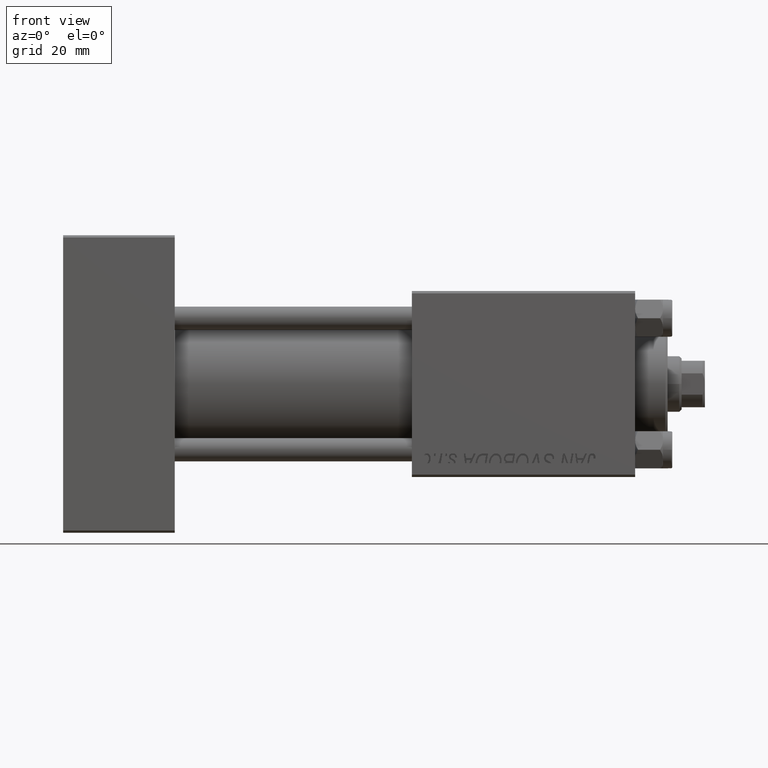
[diagram: clean part render]
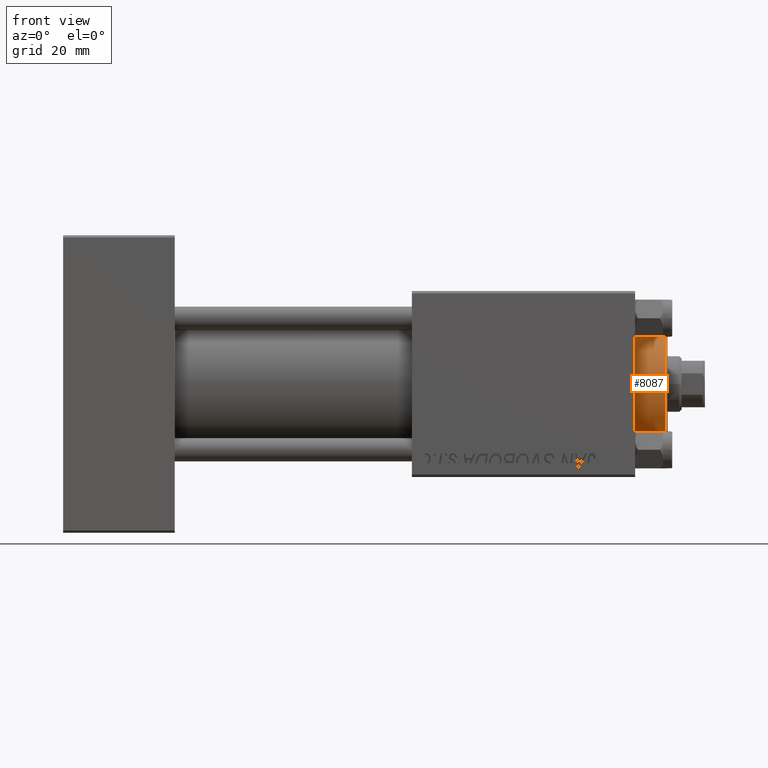
[diagram: same view with one face highlighted and labeled with its STEP entity id]
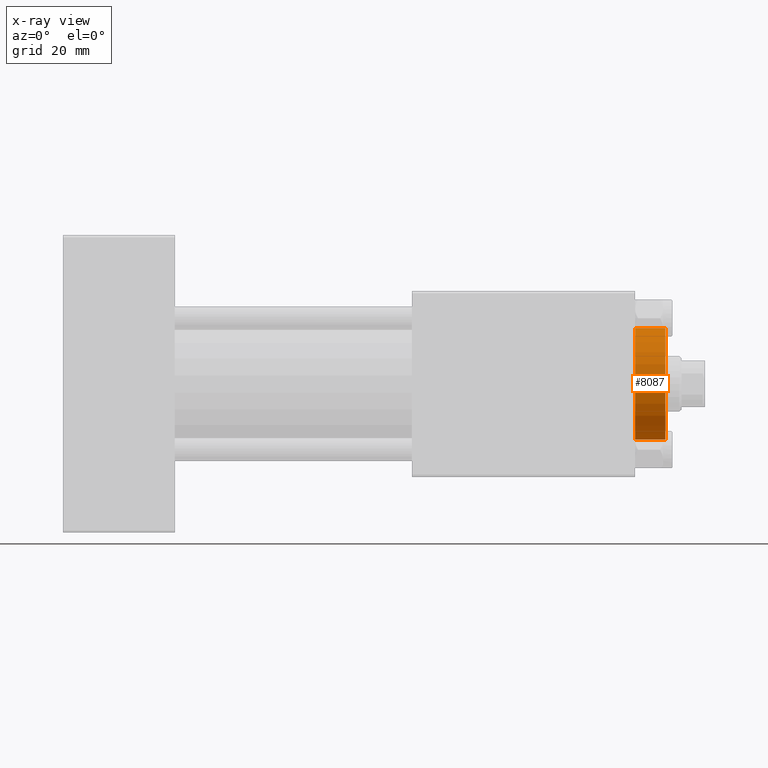
[diagram: x-ray of the same camera — body ghosted, the highlighted face saturated]
A machine part, front view. The second image highlights one B-rep face of the part: STEP entity #8087.
The next image is the same camera in x-ray: the body ghosted, the highlighted face saturated — about 0% of this face is hidden behind the body in this view.
In plain terms, the highlighted cylindrical surface (partial cylindrical patch) has radius 12 mm, axis along (-1, -0, 0).
Its self-contained STEP definition (entity closure, byte-faithful):
#204 = DIRECTION ( 'NONE',  ( -0.000000000000000000, -0.000000000000000000, -1.000000000000000000 ) ) ;
#399 = CARTESIAN_POINT ( 'NONE',  ( 0.000000000000000000, 0.000000000000000000, 35.19999999999999574 ) ) ;
#699 = AXIS2_PLACEMENT_3D ( 'NONE', #27107, #7915, #45797 ) ;
#3124 = DIRECTION ( 'NONE',  ( -0.000000000000000000, -0.000000000000000000, -1.000000000000000000 ) ) ;
#4938 = ORIENTED_EDGE ( 'NONE', *, *, #32962, .T. ) ;
#7486 = EDGE_CURVE ( 'NONE', #47022, #32833, #12799, .T. ) ;
#7915 = DIRECTION ( 'NONE',  ( 0.000000000000000000, 0.000000000000000000, 1.000000000000000000 ) ) ;
#8087 = ADVANCED_FACE ( 'NONE', ( #35566 ), #42876, .T. ) ;
#10953 = CARTESIAN_POINT ( 'NONE',  ( -12.00000000000000178, 0.000000000000000000, 35.70000000000000284 ) ) ;
#11571 = LINE ( 'NONE', #26718, #38207 ) ;
#12023 = ORIENTED_EDGE ( 'NONE', *, *, #24948, .F. ) ;
#12799 = CIRCLE ( 'NONE', #699, 12.00000000000000178 ) ;
#12854 = DIRECTION ( 'NONE',  ( -0.000000000000000000, -0.000000000000000000, -1.000000000000000000 ) ) ;
#13537 = VERTEX_POINT ( 'NONE', #43755 ) ;
#18182 = EDGE_LOOP ( 'NONE', ( #12023, #28711, #4938, #48888 ) ) ;
#24948 = EDGE_CURVE ( 'NONE', #35257, #32833, #11571, .T. ) ;
#26718 = CARTESIAN_POINT ( 'NONE',  ( 12.00000000000000178, 1.469576158976824144E-15, 35.70000000000000284 ) ) ;
#27107 = CARTESIAN_POINT ( 'NONE',  ( 0.000000000000000000, 0.000000000000000000, 28.69999999999999929 ) ) ;
#27153 = DIRECTION ( 'NONE',  ( 0.000000000000000000, 0.000000000000000000, -1.000000000000000000 ) ) ;
#28242 = DIRECTION ( 'NONE',  ( -1.000000000000000000, 0.000000000000000000, 0.000000000000000000 ) ) ;
#28711 = ORIENTED_EDGE ( 'NONE', *, *, #33983, .T. ) ;
#30386 = LINE ( 'NONE', #10953, #33637 ) ;
#30442 = CARTESIAN_POINT ( 'NONE',  ( -12.00000000000000178, 0.000000000000000000, 28.69999999999999929 ) ) ;
#31198 = DIRECTION ( 'NONE',  ( 1.000000000000000000, 0.000000000000000000, 0.000000000000000000 ) ) ;
#32833 = VERTEX_POINT ( 'NONE', #37220 ) ;
#32962 = EDGE_CURVE ( 'NONE', #13537, #47022, #30386, .T. ) ;
#33637 = VECTOR ( 'NONE', #3124, 1000.000000000000000 ) ;
#33983 = EDGE_CURVE ( 'NONE', #35257, #13537, #43349, .T. ) ;
#34572 = AXIS2_PLACEMENT_3D ( 'NONE', #47675, #12854, #28242 ) ;
#35257 = VERTEX_POINT ( 'NONE', #46020 ) ;
#35566 = FACE_OUTER_BOUND ( 'NONE', #18182, .T. ) ;
#37220 = CARTESIAN_POINT ( 'NONE',  ( 12.00000000000000178, 1.469576158976824144E-15, 28.69999999999999929 ) ) ;
#38207 = VECTOR ( 'NONE', #204, 1000.000000000000000 ) ;
#42876 = CYLINDRICAL_SURFACE ( 'NONE', #34572, 12.00000000000000178 ) ;
#43349 = CIRCLE ( 'NONE', #48190, 12.00000000000000178 ) ;
#43755 = CARTESIAN_POINT ( 'NONE',  ( -12.00000000000000178, 0.000000000000000000, 35.19999999999999574 ) ) ;
#45797 = DIRECTION ( 'NONE',  ( 1.000000000000000000, 0.000000000000000000, 0.000000000000000000 ) ) ;
#46020 = CARTESIAN_POINT ( 'NONE',  ( 12.00000000000000178, 1.469576158976824144E-15, 35.19999999999999574 ) ) ;
#47022 = VERTEX_POINT ( 'NONE', #30442 ) ;
#47675 = CARTESIAN_POINT ( 'NONE',  ( 0.000000000000000000, 0.000000000000000000, 35.70000000000000284 ) ) ;
#48190 = AXIS2_PLACEMENT_3D ( 'NONE', #399, #27153, #31198 ) ;
#48888 = ORIENTED_EDGE ( 'NONE', *, *, #7486, .T. ) ;